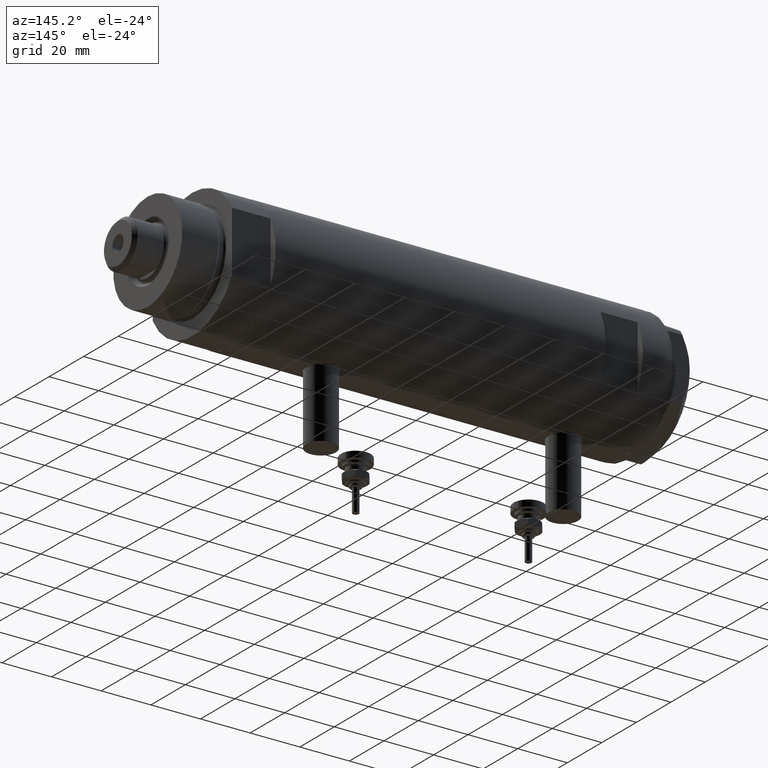
[diagram: clean part render]
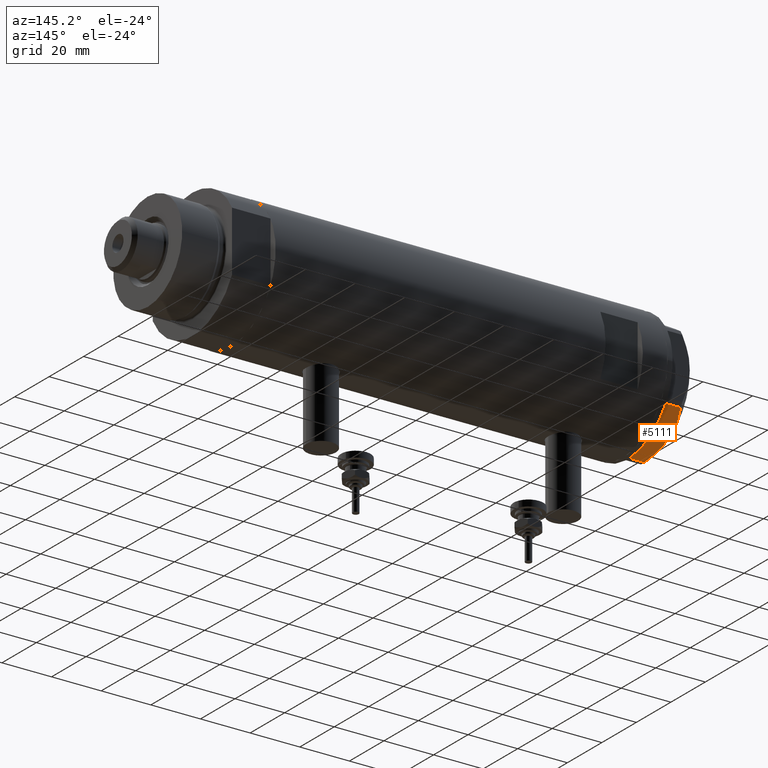
[diagram: same view with one face highlighted and labeled with its STEP entity id]
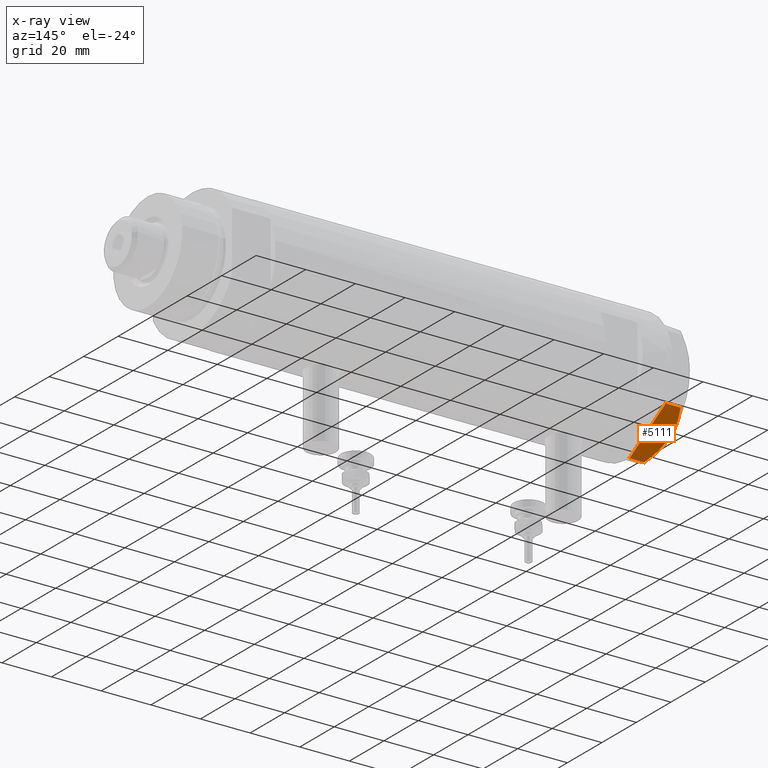
[diagram: x-ray of the same camera — body ghosted, the highlighted face saturated]
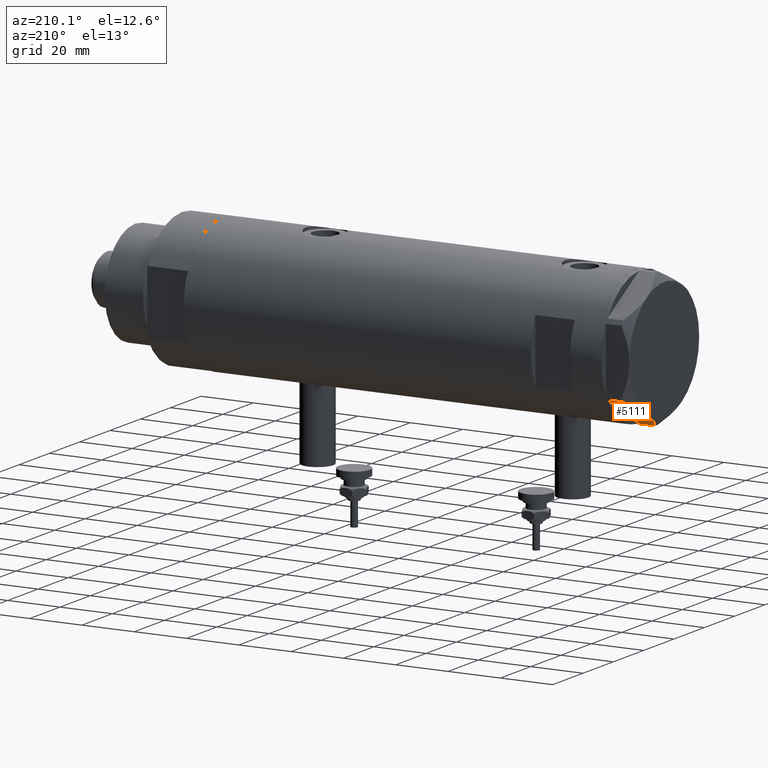
[diagram: same view with one face highlighted and labeled with its STEP entity id]
A machine part, auxiliary view. The second image highlights one B-rep face of the part: STEP entity #5111.
The next image is the same camera in x-ray: the body ghosted, the highlighted face saturated — about 0% of this face is hidden behind the body in this view.
A second angle (auxiliary view) of the same face is appended — the face is thin or edge-on in the first view.
In plain terms, the highlighted planar face has unit normal (0, -0.5, 0.866).
Its self-contained STEP definition (entity closure, byte-faithful):
#21 = CARTESIAN_POINT ( 'NONE',  ( 22.03005154776124286, 13.83905619136163168, 9.000000000000000000 ) ) ;
#172 = CARTESIAN_POINT ( 'NONE',  ( 15.16323225988329959, 17.80361615569442790, 8.637313967156861949 ) ) ;
#189 = DIRECTION ( 'NONE',  ( 0.8660254037844415942, -0.4999999999999949485, 0.000000000000000000 ) ) ;
#232 = CARTESIAN_POINT ( 'NONE',  ( 0.9699484522385767304, 25.99811238272274849, 5.983800287807627960 ) ) ;
#287 = B_SPLINE_CURVE_WITH_KNOTS ( 'NONE', 3,
 ( #4145, #3148, #777, #3589, #172, #678, #2137, #6029, #5560, #5051 ),
 .UNSPECIFIED., .F., .F.,
 ( 4, 2, 2, 2, 4 ),
 ( 0.001228959670438493522, 0.007497079744270714746, 0.01063113978118682655, 0.01219816979964488159, 0.01376519981810293489 ),
 .UNSPECIFIED. ) ;
#342 = LINE ( 'NONE', #4203, #1369 ) ;
#373 = LINE ( 'NONE', #6122, #6001 ) ;
#405 = ORIENTED_EDGE ( 'NONE', *, *, #6170, .F. ) ;
#455 = LINE ( 'NONE', #3219, #2421 ) ;
#485 = EDGE_LOOP ( 'NONE', ( #405, #3249, #2739, #801, #4265, #5886, #3684 ) ) ;
#490 = CARTESIAN_POINT ( 'NONE',  ( 22.03005154776138852, 13.83905619136154819, 5.983800287807532037 ) ) ;
#511 = CARTESIAN_POINT ( 'NONE',  ( 7.884645426989626671, 22.00591022298560517, 8.707651728476925257 ) ) ;
#642 = CARTESIAN_POINT ( 'NONE',  ( 3.925137811030050994, 24.29193301091819635, 7.397272853991373687 ) ) ;
#678 = CARTESIAN_POINT ( 'NONE',  ( 13.80210138309697498, 18.58946543380931260, 8.852712638955710034 ) ) ;
#749 = LINE ( 'NONE', #4321, #3852 ) ;
#765 = CARTESIAN_POINT ( 'NONE',  ( 22.99999999999981171, 13.27905619136164184, 9.000000000000000000 ) ) ;
#777 = CARTESIAN_POINT ( 'NONE',  ( 18.67981377008996446, 15.77331687414937278, 7.629374868826049649 ) ) ;
#801 = ORIENTED_EDGE ( 'NONE', *, *, #3455, .T. ) ;
#925 = CARTESIAN_POINT ( 'NONE',  ( 22.03005154776124286, 13.83905619136163168, 0.000000000000000000 ) ) ;
#1066 = CARTESIAN_POINT ( 'NONE',  ( 0.9699484522385767304, 25.99811238272274849, 5.983800287807627960 ) ) ;
#1091 = CARTESIAN_POINT ( 'NONE',  ( 4.357207709416038632, 24.04247733877631532, 7.570552255229681116 ) ) ;
#1121 = CARTESIAN_POINT ( 'NONE',  ( 21.99999999999987210, 13.85640646055121827, 0.000000000000000000 ) ) ;
#1369 = VECTOR ( 'NONE', #6185, 999.9999999999998863 ) ;
#1380 = EDGE_CURVE ( 'NONE', #1568, #2217, #342, .T. ) ;
#1468 = DIRECTION ( 'NONE',  ( -0.8660254037844415942, 0.4999999999999949485, 0.000000000000000000 ) ) ;
#1568 = VERTEX_POINT ( 'NONE', #5035 ) ;
#2107 = CARTESIAN_POINT ( 'NONE',  ( 5.671686373602799591, 23.28356272816407824, 8.040681765829278405 ) ) ;
#2137 = CARTESIAN_POINT ( 'NONE',  ( 13.34348161667005073, 18.85424967941157703, 8.907842277728345692 ) ) ;
#2217 = VERTEX_POINT ( 'NONE', #5748 ) ;
#2351 = B_SPLINE_CURVE_WITH_KNOTS ( 'NONE', 3,
 ( #5751, #3032, #511, #2107, #2435, #1091, #642, #4890, #4387, #1066 ),
 .UNSPECIFIED., .F., .F.,
 ( 4, 2, 2, 2, 4 ),
 ( 0.01376519981810293489, 0.01998941321701561136, 0.02154546656674377961, 0.02310151991647194786, 0.02621362661592828783 ),
 .UNSPECIFIED. ) ;
#2393 = DIRECTION ( 'NONE',  ( 0.000000000000000000, 0.000000000000000000, 1.000000000000000000 ) ) ;
#2421 = VECTOR ( 'NONE', #2393, 1000.000000000000000 ) ;
#2435 = CARTESIAN_POINT ( 'NONE',  ( 5.229981517798067081, 23.53858114556529912, 7.892128867758392730 ) ) ;
#2442 = EDGE_CURVE ( 'NONE', #2510, #4518, #373, .T. ) ;
#2510 = VERTEX_POINT ( 'NONE', #925 ) ;
#2619 = FACE_OUTER_BOUND ( 'NONE', #485, .T. ) ;
#2739 = ORIENTED_EDGE ( 'NONE', *, *, #2442, .T. ) ;
#2740 = EDGE_CURVE ( 'NONE', #2217, #5460, #455, .T. ) ;
#2957 = AXIS2_PLACEMENT_3D ( 'NONE', #765, #5104, #189 ) ;
#2961 = VERTEX_POINT ( 'NONE', #490 ) ;
#3032 = CARTESIAN_POINT ( 'NONE',  ( 9.678244919010086988, 20.97037507344920826, 9.000000000000001776 ) ) ;
#3148 = CARTESIAN_POINT ( 'NONE',  ( 20.37350567916420019, 14.79546339452108050, 6.877782426143415506 ) ) ;
#3219 = CARTESIAN_POINT ( 'NONE',  ( 0.9699484522385816154, 25.99811238272274494, 9.000000000000000000 ) ) ;
#3249 = ORIENTED_EDGE ( 'NONE', *, *, #4228, .T. ) ;
#3447 = VECTOR ( 'NONE', #4388, 1000.000000000000000 ) ;
#3455 = EDGE_CURVE ( 'NONE', #4518, #1568, #749, .T. ) ;
#3589 = CARTESIAN_POINT ( 'NONE',  ( 16.05322244309623869, 17.28978008384030929, 8.426899937603700153 ) ) ;
#3684 = ORIENTED_EDGE ( 'NONE', *, *, #5636, .F. ) ;
#3852 = VECTOR ( 'NONE', #1468, 999.9999999999998863 ) ;
#4057 = PLANE ( 'NONE',  #2957 ) ;
#4145 = CARTESIAN_POINT ( 'NONE',  ( 22.03005154776138852, 13.83905619136154819, 5.983800287807532037 ) ) ;
#4203 = CARTESIAN_POINT ( 'NONE',  ( 22.99999999999981171, 13.27905619136164184, 0.000000000000000000 ) ) ;
#4228 = EDGE_CURVE ( 'NONE', #2961, #2510, #4891, .T. ) ;
#4265 = ORIENTED_EDGE ( 'NONE', *, *, #1380, .T. ) ;
#4321 = CARTESIAN_POINT ( 'NONE',  ( 22.99999999999981171, 13.27905619136164184, 0.000000000000000000 ) ) ;
#4387 = CARTESIAN_POINT ( 'NONE',  ( 1.799196345396824492, 25.51934588838292228, 6.431317509509382191 ) ) ;
#4388 = DIRECTION ( 'NONE',  ( 0.000000000000000000, 0.000000000000000000, -1.000000000000000000 ) ) ;
#4518 = VERTEX_POINT ( 'NONE', #1121 ) ;
#4603 = CARTESIAN_POINT ( 'NONE',  ( 11.49999999999990408, 19.91858428704219364, 9.000000000000000000 ) ) ;
#4606 = DIRECTION ( 'NONE',  ( -0.8660254037844415942, 0.4999999999999949485, 0.000000000000000000 ) ) ;
#4890 = CARTESIAN_POINT ( 'NONE',  ( 2.640413878806739945, 25.03366871902167290, 6.844201024438365089 ) ) ;
#4891 = LINE ( 'NONE', #21, #3447 ) ;
#5035 = CARTESIAN_POINT ( 'NONE',  ( 0.9999999999999297229, 25.98076211353316722, 0.000000000000000000 ) ) ;
#5051 = CARTESIAN_POINT ( 'NONE',  ( 11.49999999999990408, 19.91858428704219364, 9.000000000000000000 ) ) ;
#5104 = DIRECTION ( 'NONE',  ( -0.4999999999999949485, -0.8660254037844415942, 0.000000000000000000 ) ) ;
#5111 = ADVANCED_FACE ( 'NONE', ( #2619 ), #4057, .F. ) ;
#5460 = VERTEX_POINT ( 'NONE', #232 ) ;
#5560 = CARTESIAN_POINT ( 'NONE',  ( 11.95865151389051917, 19.65378171203322566, 9.000000000000005329 ) ) ;
#5564 = VERTEX_POINT ( 'NONE', #4603 ) ;
#5636 = EDGE_CURVE ( 'NONE', #5564, #5460, #2351, .T. ) ;
#5748 = CARTESIAN_POINT ( 'NONE',  ( 0.9699484522385816154, 25.99811238272274494, 0.000000000000000000 ) ) ;
#5751 = CARTESIAN_POINT ( 'NONE',  ( 11.49999999999990408, 19.91858428704219364, 9.000000000000000000 ) ) ;
#5886 = ORIENTED_EDGE ( 'NONE', *, *, #2740, .T. ) ;
#6001 = VECTOR ( 'NONE', #4606, 999.9999999999998863 ) ;
#6029 = CARTESIAN_POINT ( 'NONE',  ( 12.41906678023027588, 19.38796083407295967, 8.981686407609410949 ) ) ;
#6122 = CARTESIAN_POINT ( 'NONE',  ( 22.99999999999981171, 13.27905619136164184, 0.000000000000000000 ) ) ;
#6170 = EDGE_CURVE ( 'NONE', #2961, #5564, #287, .T. ) ;
#6185 = DIRECTION ( 'NONE',  ( -0.8660254037844415942, 0.4999999999999949485, 0.000000000000000000 ) ) ;